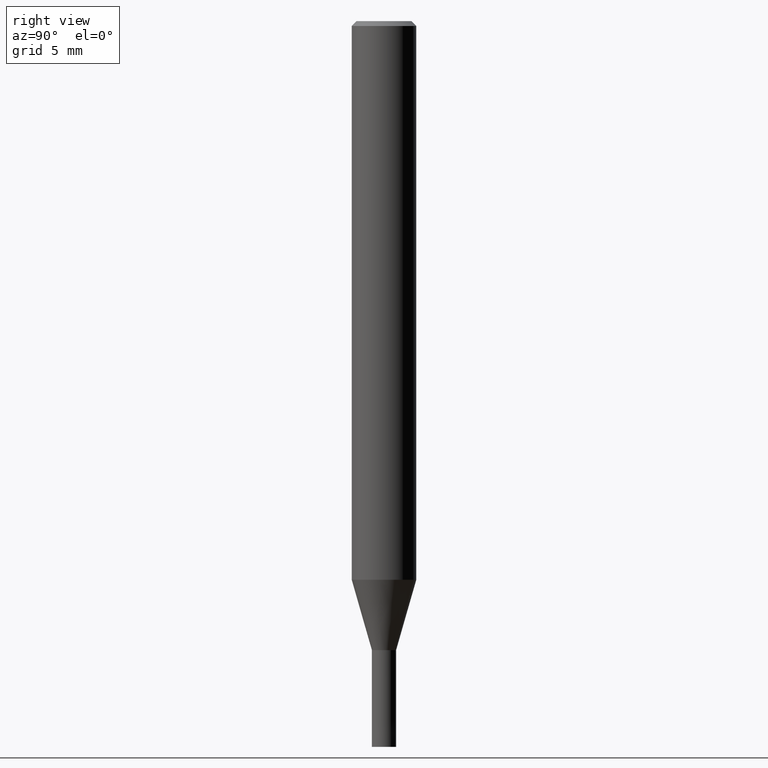
[diagram: clean part render]
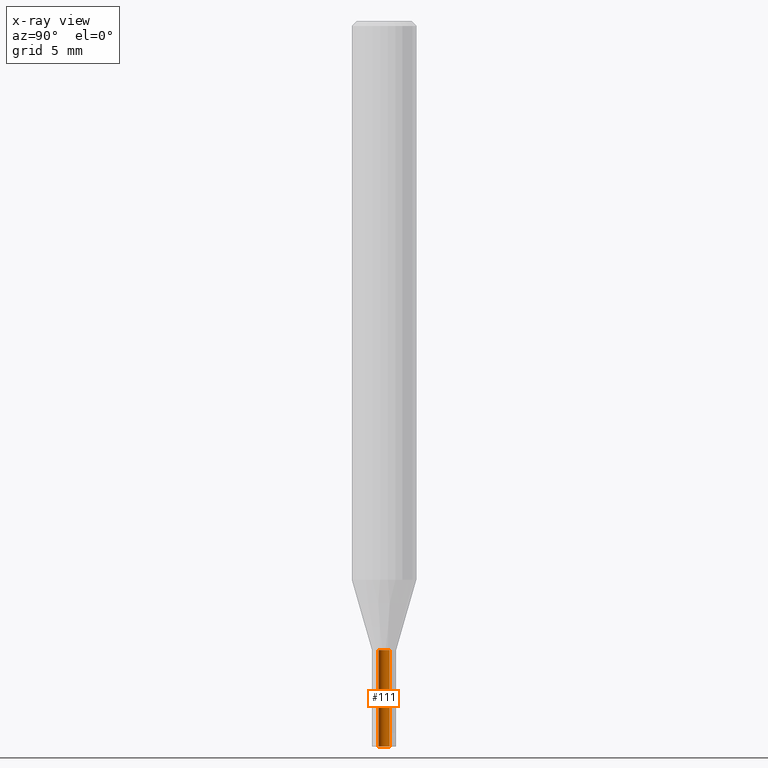
[diagram: x-ray — body ghosted, one internal face saturated and labeled with its STEP entity id]
A machine part, right view, then the same camera in x-ray: the body is ghosted and one INTERNAL B-rep face — a face not visible from any outside direction — is saturated and labeled: STEP entity #111.
In plain terms, the highlighted cylindrical surface (edge-blend (fillet) strip) has radius 0.3375 mm, axis along (-0, -0, 1).
Its self-contained STEP definition (entity closure, byte-faithful):
#111=ADVANCED_FACE('',(#282),#283,.F.);
#117=VERTEX_POINT('',#289);
#137=EDGE_CURVE('',#225,#255,#311,.T.);
#153=EDGE_CURVE('',#117,#249,#329,.T.);
#215=EDGE_CURVE('',#225,#117,#402,.T.);
#217=EDGE_CURVE('',#249,#255,#404,.T.);
#225=VERTEX_POINT('',#413);
#249=VERTEX_POINT('',#442);
#255=VERTEX_POINT('',#448);
#282=FACE_OUTER_BOUND('',#469,.T.);
#283=CYLINDRICAL_SURFACE('',#470,0.3375);
#289=CARTESIAN_POINT('',(4.13304644415052E-017,-0.3375,-39.0));
#311=CIRCLE('',#507,0.3375);
#329=CIRCLE('',#531,0.3375);
#402=LINE('',#620,#621);
#404=LINE('',#624,#625);
#413=CARTESIAN_POINT('',(4.13304644415052E-017,-0.3375,-45.0));
#442=CARTESIAN_POINT('',(0.0,0.3375,-39.0));
#448=CARTESIAN_POINT('',(0.0,0.3375,-45.0));
#469=EDGE_LOOP('',(#685,#686,#687,#688));
#470=AXIS2_PLACEMENT_3D('',#689,#690,#691);
#507=AXIS2_PLACEMENT_3D('',#719,#720,#721);
#531=AXIS2_PLACEMENT_3D('',#748,#749,#750);
#620=CARTESIAN_POINT('',(4.13304644415052E-017,-0.3375,-42.0));
#621=VECTOR('',#853,1.0);
#624=CARTESIAN_POINT('',(-4.13304644415052E-017,0.3375,-42.0));
#625=VECTOR('',#854,1.0);
#685=ORIENTED_EDGE('',*,*,#217,.F.);
#686=ORIENTED_EDGE('',*,*,#153,.F.);
#687=ORIENTED_EDGE('',*,*,#215,.F.);
#688=ORIENTED_EDGE('',*,*,#137,.T.);
#689=CARTESIAN_POINT('',(0.0,0.0,-42.0));
#690=DIRECTION('',(-0.0,-0.0,1.0));
#691=DIRECTION('',(0.0,1.0,0.0));
#719=CARTESIAN_POINT('',(0.0,0.0,-45.0));
#720=DIRECTION('',(0.0,0.0,-1.0));
#721=DIRECTION('',(0.0,1.0,0.0));
#748=CARTESIAN_POINT('',(0.0,0.0,-39.0));
#749=DIRECTION('',(0.0,0.0,-1.0));
#750=DIRECTION('',(0.0,1.0,0.0));
#853=DIRECTION('',(0.0,-0.0,1.0));
#854=DIRECTION('',(0.0,-0.0,-1.0));